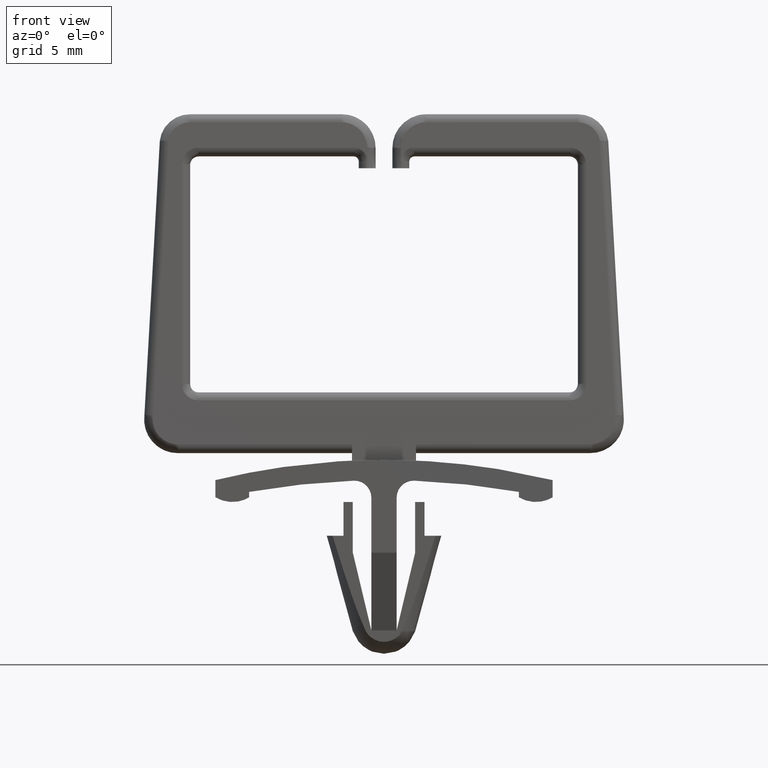
[diagram: clean part render]
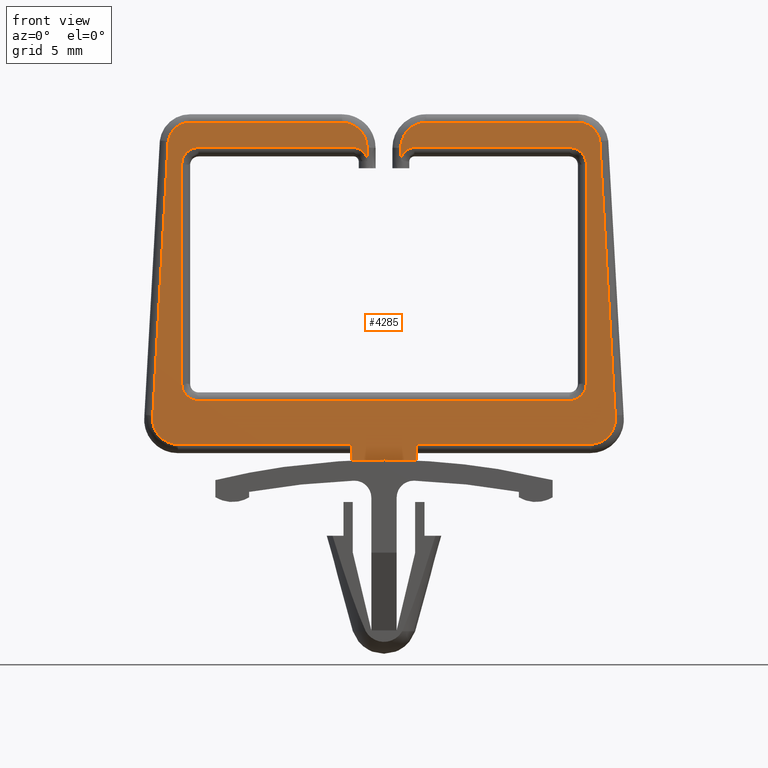
[diagram: same view with one face highlighted and labeled with its STEP entity id]
A machine part, front view. The second image highlights one B-rep face of the part: STEP entity #4285.
In plain terms, the highlighted face is a freeform B-spline surface patch.
Its self-contained STEP definition (entity closure, byte-faithful):
#58=CARTESIAN_POINT('',(1.899999999999890,-2.498031145214460,-4.042725642710270));
#59=VERTEX_POINT('',#58);
#60=CARTESIAN_POINT('',(-1.899999990472700,-2.498031154818015,-4.042725854083999));
#61=VERTEX_POINT('',#60);
#62=CARTESIAN_POINT('',(1.899999999999890,-2.498031145214460,-4.042725642710270));
#63=CARTESIAN_POINT('',(5.750821E-010,-2.494146697265660,-3.957229212745592));
#64=CARTESIAN_POINT('',(-1.899999990472700,-2.498031154818015,-4.042725854083999));
#72=(BOUNDED_CURVE()B_SPLINE_CURVE(2,(#62,#63,#64),.UNSPECIFIED.,.F.,.U.)CURVE()GEOMETRIC_REPRESENTATION_ITEM()QUASI_UNIFORM_CURVE()RATIONAL_B_SPLINE_CURVE((1.0,0.998989116641574,1.0))REPRESENTATION_ITEM(''));
#73=EDGE_CURVE('',#59,#61,#72,.T.);
#2157=CARTESIAN_POINT('',(-1.900000000000000,-2.454168251417960,-3.077306392163555));
#2158=VERTEX_POINT('',#2157);
#2176=CARTESIAN_POINT('',(-12.229322000000019,-2.454168251417960,-3.077306392163550));
#2177=VERTEX_POINT('',#2176);
#2178=CARTESIAN_POINT('',(-12.229322000000019,-2.454168251417960,-3.077306392163550));
#2179=CARTESIAN_POINT('',(-1.900000000000000,-2.454168251417960,-3.077306392163555));
#2180=QUASI_UNIFORM_CURVE('',1,(#2178,#2179),.UNSPECIFIED.,.F.,.U.);
#2181=EDGE_CURVE('',#2177,#2158,#2180,.T.);
#2246=CARTESIAN_POINT('',(-13.715162772383801,-2.376675313031650,-1.371692192454490));
#2247=VERTEX_POINT('',#2246);
#2289=CARTESIAN_POINT('',(-13.715162772383790,-2.376675313031652,-1.371692192454489));
#2290=CARTESIAN_POINT('',(-13.808735155067309,-2.407397220863577,-2.047879253255677));
#2291=CARTESIAN_POINT('',(-13.360343949292700,-2.430782736140768,-2.562592822709612));
#2292=CARTESIAN_POINT('',(-12.911952743518087,-2.454168251417959,-3.077306392163548));
#2293=CARTESIAN_POINT('',(-12.229322000000019,-2.454168251417959,-3.077306392163548));
#2301=(BOUNDED_CURVE()B_SPLINE_CURVE(2,(#2289,#2290,#2291,#2292,#2293),.UNSPECIFIED.,.F.,.U.)B_SPLINE_CURVE_WITH_KNOTS((3,2,3),(0.0,0.500000000000000,1.0),.UNSPECIFIED.)CURVE()GEOMETRIC_REPRESENTATION_ITEM()RATIONAL_B_SPLINE_CURVE((1.0,0.910180647004772,1.0,0.910180647004772,1.0))REPRESENTATION_ITEM(''));
#2302=EDGE_CURVE('',#2247,#2177,#2301,.T.);
#2338=CARTESIAN_POINT('',(-12.802022432150700,-1.637255589427875,14.902884644941620));
#2339=VERTEX_POINT('',#2338);
#2340=CARTESIAN_POINT('',(-12.802022432150700,-1.637255589427875,14.902884644941620));
#2341=CARTESIAN_POINT('',(-13.715162772383801,-2.376675313031650,-1.371692192454490));
#2342=QUASI_UNIFORM_CURVE('',1,(#2340,#2341),.UNSPECIFIED.,.F.,.U.);
#2343=EDGE_CURVE('',#2339,#2247,#2342,.T.);
#2418=CARTESIAN_POINT('',(-11.514571000000000,-1.586378147752710,16.022693607836349));
#2419=VERTEX_POINT('',#2418);
#2449=CARTESIAN_POINT('',(-11.514571000000000,-1.586378147752710,16.022693607836349));
#2450=CARTESIAN_POINT('',(-12.645294548406925,-1.586378147752693,16.022693607836263));
#2451=CARTESIAN_POINT('',(-12.802022432150700,-1.637255589427856,14.902884644941629));
#2459=(BOUNDED_CURVE()B_SPLINE_CURVE(2,(#2449,#2450,#2451),.UNSPECIFIED.,.F.,.U.)CURVE()GEOMETRIC_REPRESENTATION_ITEM()QUASI_UNIFORM_CURVE()RATIONAL_B_SPLINE_CURVE((1.0,0.754522527854886,1.0))REPRESENTATION_ITEM(''));
#2460=EDGE_CURVE('',#2419,#2339,#2459,.T.);
#2479=CARTESIAN_POINT('',(-2.500000000000000,-1.586378147752710,16.022693607836349));
#2480=VERTEX_POINT('',#2479);
#2502=CARTESIAN_POINT('',(-2.500000000000000,-1.586378147752710,16.022693607836349));
#2503=CARTESIAN_POINT('',(-11.514571000000000,-1.586378147752710,16.022693607836349));
#2504=QUASI_UNIFORM_CURVE('',1,(#2502,#2503),.UNSPECIFIED.,.F.,.U.);
#2505=EDGE_CURVE('',#2480,#2419,#2504,.T.);
#2548=CARTESIAN_POINT('',(-1.0,-1.654529203014380,14.522693607836359));
#2549=VERTEX_POINT('',#2548);
#2581=CARTESIAN_POINT('',(-1.0,-1.654529203014360,14.522693607836359));
#2582=CARTESIAN_POINT('',(-1.000000000000000,-1.586378156126964,16.022693423519190));
#2583=CARTESIAN_POINT('',(-2.500000000000000,-1.586378147752710,16.022693607836349));
#2591=(BOUNDED_CURVE()B_SPLINE_CURVE(2,(#2581,#2582,#2583),.UNSPECIFIED.,.F.,.U.)CURVE()GEOMETRIC_REPRESENTATION_ITEM()QUASI_UNIFORM_CURVE()RATIONAL_B_SPLINE_CURVE((1.0,0.707106824630523,1.0))REPRESENTATION_ITEM(''));
#2592=EDGE_CURVE('',#2549,#2480,#2591,.T.);
#2649=CARTESIAN_POINT('',(-1.0,-1.690876432487270,13.722693607836259));
#2650=VERTEX_POINT('',#2649);
#2651=CARTESIAN_POINT('',(-1.0,-1.690876432487270,13.722693607836259));
#2652=CARTESIAN_POINT('',(-1.0,-1.654529203014380,14.522693607836359));
#2653=QUASI_UNIFORM_CURVE('',1,(#2651,#2652),.UNSPECIFIED.,.F.,.U.);
#2654=EDGE_CURVE('',#2650,#2549,#2653,.T.);
#2732=CARTESIAN_POINT('',(-1.800000000000000,-1.654529203014380,14.522693607836359));
#2733=VERTEX_POINT('',#2732);
#2765=CARTESIAN_POINT('',(-1.800000000000000,-1.654529203014380,14.522693607836359));
#2766=CARTESIAN_POINT('',(-1.000000000000000,-1.654529203014455,14.522693607836256));
#2767=CARTESIAN_POINT('',(-1.0,-1.690876432487270,13.722693607836259));
#2775=(BOUNDED_CURVE()B_SPLINE_CURVE(2,(#2765,#2766,#2767),.UNSPECIFIED.,.F.,.U.)CURVE()GEOMETRIC_REPRESENTATION_ITEM()QUASI_UNIFORM_CURVE()RATIONAL_B_SPLINE_CURVE((1.0,0.707106781186544,1.0))REPRESENTATION_ITEM(''));
#2776=EDGE_CURVE('',#2733,#2650,#2775,.T.);
#2795=CARTESIAN_POINT('',(-11.0,-1.654529203014380,14.522693607836359));
#2796=VERTEX_POINT('',#2795);
#2820=CARTESIAN_POINT('',(-11.0,-1.654529203014380,14.522693607836359));
#2821=CARTESIAN_POINT('',(-1.800000000000000,-1.654529203014380,14.522693607836359));
#2822=QUASI_UNIFORM_CURVE('',1,(#2820,#2821),.UNSPECIFIED.,.F.,.U.);
#2823=EDGE_CURVE('',#2796,#2733,#2822,.T.);
#2886=CARTESIAN_POINT('',(-12.0,-1.699963239855490,13.522693607836340));
#2887=VERTEX_POINT('',#2886);
#2919=CARTESIAN_POINT('',(-12.0,-1.699963239855455,13.522693607836359));
#2920=CARTESIAN_POINT('',(-11.999999999999998,-1.681143845116787,13.936907180900132));
#2921=CARTESIAN_POINT('',(-11.707106768281760,-1.667836523722108,14.229800401927690));
#2922=CARTESIAN_POINT('',(-11.414213536563533,-1.654529202327430,14.522693622955259));
#2923=CARTESIAN_POINT('',(-11.0,-1.654529203014380,14.522693607836359));
#2931=(BOUNDED_CURVE()B_SPLINE_CURVE(2,(#2919,#2920,#2921,#2922,#2923),.UNSPECIFIED.,.F.,.U.)B_SPLINE_CURVE_WITH_KNOTS((3,2,3),(0.0,0.500000000000000,1.0),.UNSPECIFIED.)CURVE()GEOMETRIC_REPRESENTATION_ITEM()RATIONAL_B_SPLINE_CURVE((1.0,0.923879529019277,1.0,0.923879529019277,1.0))REPRESENTATION_ITEM(''));
#2932=EDGE_CURVE('',#2887,#2796,#2931,.T.);
#2951=CARTESIAN_POINT('',(-12.0,-2.290605718789955,0.522693607836345));
#2952=VERTEX_POINT('',#2951);
#2976=CARTESIAN_POINT('',(-12.0,-2.290605718789955,0.522693607836345));
#2977=CARTESIAN_POINT('',(-12.0,-1.699963239855490,13.522693607836340));
#2978=QUASI_UNIFORM_CURVE('',1,(#2976,#2977),.UNSPECIFIED.,.F.,.U.);
#2979=EDGE_CURVE('',#2952,#2887,#2978,.T.);
#3042=CARTESIAN_POINT('',(-11.0,-2.336039755631070,-0.477306392163655));
#3043=VERTEX_POINT('',#3042);
#3073=CARTESIAN_POINT('',(-11.0,-2.336039755631048,-0.477306392163657));
#3074=CARTESIAN_POINT('',(-11.414213562373092,-2.336039755631048,-0.477306392163657));
#3075=CARTESIAN_POINT('',(-11.707106781186550,-2.322732434336965,-0.184413173350204));
#3076=CARTESIAN_POINT('',(-12.0,-2.309425113042883,0.108480045463248));
#3077=CARTESIAN_POINT('',(-12.0,-2.290605718789935,0.522693607836344));
#3085=(BOUNDED_CURVE()B_SPLINE_CURVE(2,(#3073,#3074,#3075,#3076,#3077),.UNSPECIFIED.,.F.,.U.)B_SPLINE_CURVE_WITH_KNOTS((3,2,3),(0.0,0.500000000000000,1.0),.UNSPECIFIED.)CURVE()GEOMETRIC_REPRESENTATION_ITEM()RATIONAL_B_SPLINE_CURVE((1.0,0.923879532511288,1.0,0.923879532511288,1.0))REPRESENTATION_ITEM(''));
#3086=EDGE_CURVE('',#3043,#2952,#3085,.T.);
#3105=CARTESIAN_POINT('',(11.0,-2.336039755631070,-0.477306392163657));
#3106=VERTEX_POINT('',#3105);
#3128=CARTESIAN_POINT('',(11.0,-2.336039755631070,-0.477306392163657));
#3129=CARTESIAN_POINT('',(-11.0,-2.336039755631070,-0.477306392163655));
#3130=QUASI_UNIFORM_CURVE('',1,(#3128,#3129),.UNSPECIFIED.,.F.,.U.);
#3131=EDGE_CURVE('',#3106,#3043,#3130,.T.);
#3194=CARTESIAN_POINT('',(12.0,-2.290605718789955,0.522693607836344));
#3195=VERTEX_POINT('',#3194);
#3227=CARTESIAN_POINT('',(12.0,-2.290605718789935,0.522693607836343));
#3228=CARTESIAN_POINT('',(12.0,-2.336039755631048,-0.477306392163657));
#3229=CARTESIAN_POINT('',(11.0,-2.336039755631048,-0.477306392163657));
#3237=(BOUNDED_CURVE()B_SPLINE_CURVE(2,(#3227,#3228,#3229),.UNSPECIFIED.,.F.,.U.)CURVE()GEOMETRIC_REPRESENTATION_ITEM()QUASI_UNIFORM_CURVE()RATIONAL_B_SPLINE_CURVE((1.0,0.707106781186547,1.0))REPRESENTATION_ITEM(''));
#3238=EDGE_CURVE('',#3195,#3106,#3237,.T.);
#3257=CARTESIAN_POINT('',(12.0,-1.699963239855490,13.522693607836340));
#3258=VERTEX_POINT('',#3257);
#3282=CARTESIAN_POINT('',(12.0,-1.699963239855490,13.522693607836340));
#3283=CARTESIAN_POINT('',(12.0,-2.290605718789955,0.522693607836344));
#3284=QUASI_UNIFORM_CURVE('',1,(#3282,#3283),.UNSPECIFIED.,.F.,.U.);
#3285=EDGE_CURVE('',#3258,#3195,#3284,.T.);
#3348=CARTESIAN_POINT('',(11.0,-1.654529203014380,14.522693607836359));
#3349=VERTEX_POINT('',#3348);
#3383=CARTESIAN_POINT('',(11.0,-1.654529203014380,14.522693607836359));
#3384=CARTESIAN_POINT('',(12.0,-1.654529204672696,14.522693571336115));
#3385=CARTESIAN_POINT('',(12.0,-1.699963239855490,13.522693607836340));
#3393=(BOUNDED_CURVE()B_SPLINE_CURVE(2,(#3383,#3384,#3385),.UNSPECIFIED.,.F.,.U.)CURVE()GEOMETRIC_REPRESENTATION_ITEM()QUASI_UNIFORM_CURVE()RATIONAL_B_SPLINE_CURVE((1.0,0.707106794091350,1.0))REPRESENTATION_ITEM(''));
#3394=EDGE_CURVE('',#3349,#3258,#3393,.T.);
#3413=CARTESIAN_POINT('',(1.799999999999800,-1.654529203014380,14.522693607836260));
#3414=VERTEX_POINT('',#3413);
#3438=CARTESIAN_POINT('',(1.799999999999800,-1.654529203014380,14.522693607836260));
#3439=CARTESIAN_POINT('',(11.0,-1.654529203014380,14.522693607836359));
#3440=QUASI_UNIFORM_CURVE('',1,(#3438,#3439),.UNSPECIFIED.,.F.,.U.);
#3441=EDGE_CURVE('',#3414,#3349,#3440,.T.);
#3504=CARTESIAN_POINT('',(0.999999999999890,-1.690876432487270,13.722693607836259));
#3505=VERTEX_POINT('',#3504);
#3537=CARTESIAN_POINT('',(0.999999999999890,-1.690876432487270,13.722693607836259));
#3538=CARTESIAN_POINT('',(1.000000379602221,-1.654529203014456,14.522693607836256));
#3539=CARTESIAN_POINT('',(1.799999999999800,-1.654529203014380,14.522693607836260));
#3547=(BOUNDED_CURVE()B_SPLINE_CURVE(2,(#3537,#3538,#3539),.UNSPECIFIED.,.F.,.U.)CURVE()GEOMETRIC_REPRESENTATION_ITEM()QUASI_UNIFORM_CURVE()RATIONAL_B_SPLINE_CURVE((1.0,0.707106948948721,1.0))REPRESENTATION_ITEM(''));
#3548=EDGE_CURVE('',#3505,#3414,#3547,.T.);
#3603=CARTESIAN_POINT('',(0.999999999999901,-1.654529203014380,14.522693607836359));
#3604=VERTEX_POINT('',#3603);
#3605=CARTESIAN_POINT('',(0.999999999999901,-1.654529203014380,14.522693607836359));
#3606=CARTESIAN_POINT('',(0.999999999999890,-1.690876432487270,13.722693607836259));
#3607=QUASI_UNIFORM_CURVE('',1,(#3605,#3606),.UNSPECIFIED.,.F.,.U.);
#3608=EDGE_CURVE('',#3604,#3505,#3607,.T.);
#3666=CARTESIAN_POINT('',(2.499999999999901,-1.586378147752710,16.022693607836349));
#3667=VERTEX_POINT('',#3666);
#3699=CARTESIAN_POINT('',(2.499999999999901,-1.586378147752710,16.022693607836349));
#3700=CARTESIAN_POINT('',(1.878679786772192,-1.586378144283954,16.022693684183036));
#3701=CARTESIAN_POINT('',(1.439339893386047,-1.606339126733062,15.583353844782151));
#3702=CARTESIAN_POINT('',(0.999999999999900,-1.626300109182170,15.144014005381260));
#3703=CARTESIAN_POINT('',(0.999999999999900,-1.654529203014360,14.522693607836359));
#3711=(BOUNDED_CURVE()B_SPLINE_CURVE(2,(#3699,#3700,#3701,#3702,#3703),.UNSPECIFIED.,.F.,.U.)B_SPLINE_CURVE_WITH_KNOTS((3,2,3),(0.0,0.500000000000000,1.0),.UNSPECIFIED.)CURVE()GEOMETRIC_REPRESENTATION_ITEM()RATIONAL_B_SPLINE_CURVE((1.0,0.923879520755431,1.0,0.923879520755431,1.0))REPRESENTATION_ITEM(''));
#3712=EDGE_CURVE('',#3667,#3604,#3711,.T.);
#3731=CARTESIAN_POINT('',(11.514571000000000,-1.586378147752715,16.022693607836249));
#3732=VERTEX_POINT('',#3731);
#3754=CARTESIAN_POINT('',(11.514571000000000,-1.586378147752715,16.022693607836249));
#3755=CARTESIAN_POINT('',(2.499999999999901,-1.586378147752710,16.022693607836349));
#3756=QUASI_UNIFORM_CURVE('',1,(#3754,#3755),.UNSPECIFIED.,.F.,.U.);
#3757=EDGE_CURVE('',#3732,#3667,#3756,.T.);
#3800=CARTESIAN_POINT('',(12.802020763044760,-1.637255047616345,14.902896570175820));
#3801=VERTEX_POINT('',#3800);
#3841=CARTESIAN_POINT('',(12.802020763044780,-1.637255047616327,14.902896570175820));
#3842=CARTESIAN_POINT('',(12.645283995216214,-1.586378155015008,16.022693447993220));
#3843=CARTESIAN_POINT('',(11.514571000000000,-1.586378147752715,16.022693607836249));
#3851=(BOUNDED_CURVE()B_SPLINE_CURVE(2,(#3841,#3842,#3843),.UNSPECIFIED.,.F.,.U.)CURVE()GEOMETRIC_REPRESENTATION_ITEM()QUASI_UNIFORM_CURVE()RATIONAL_B_SPLINE_CURVE((1.0,0.754525613660070,1.0))REPRESENTATION_ITEM(''));
#3852=EDGE_CURVE('',#3801,#3732,#3851,.T.);
#3888=CARTESIAN_POINT('',(13.715161772383800,-2.376675313031660,-1.371692192454676));
#3889=VERTEX_POINT('',#3888);
#3890=CARTESIAN_POINT('',(13.715161772383800,-2.376675313031660,-1.371692192454676));
#3891=CARTESIAN_POINT('',(12.802020763044760,-1.637255047616345,14.902896570175820));
#3892=QUASI_UNIFORM_CURVE('',1,(#3890,#3891),.UNSPECIFIED.,.F.,.U.);
#3893=EDGE_CURVE('',#3889,#3801,#3892,.T.);
#3986=CARTESIAN_POINT('',(12.229321000000001,-2.454168251417960,-3.077306392163555));
#3987=VERTEX_POINT('',#3986);
#3988=CARTESIAN_POINT('',(12.229321000000001,-2.454168251417959,-3.077306392163548));
#3989=CARTESIAN_POINT('',(12.911951743517999,-2.454168251417960,-3.077306392163548));
#3990=CARTESIAN_POINT('',(13.360342949292599,-2.430782736140771,-2.562592822709691));
#3991=CARTESIAN_POINT('',(13.808734155067208,-2.407397220863583,-2.047879253255834));
#3992=CARTESIAN_POINT('',(13.715161772383800,-2.376675313031662,-1.371692192454694));
#4000=(BOUNDED_CURVE()B_SPLINE_CURVE(2,(#3988,#3989,#3990,#3991,#3992),.UNSPECIFIED.,.F.,.U.)B_SPLINE_CURVE_WITH_KNOTS((3,2,3),(0.0,0.500000000000000,1.0),.UNSPECIFIED.)CURVE()GEOMETRIC_REPRESENTATION_ITEM()RATIONAL_B_SPLINE_CURVE((1.0,0.910180647004785,1.0,0.910180647004785,1.0))REPRESENTATION_ITEM(''));
#4001=EDGE_CURVE('',#3987,#3889,#4000,.T.);
#4037=CARTESIAN_POINT('',(1.899999999999890,-2.454168251417960,-3.077306392163555));
#4038=VERTEX_POINT('',#4037);
#4060=CARTESIAN_POINT('',(1.899999999999890,-2.454168251417960,-3.077306392163555));
#4061=CARTESIAN_POINT('',(12.229321000000001,-2.454168251417960,-3.077306392163555));
#4062=QUASI_UNIFORM_CURVE('',1,(#4060,#4061),.UNSPECIFIED.,.F.,.U.);
#4063=EDGE_CURVE('',#4038,#3987,#4062,.T.);
#4242=CARTESIAN_POINT('',(-15.100419048805369,-1.540841081816760,17.024961271068602));
#4243=CARTESIAN_POINT('',(-15.100419048805369,-2.543568245206369,-5.044994055512736));
#4244=CARTESIAN_POINT('',(15.100418886266080,-1.540841081816760,17.024961271068602));
#4245=CARTESIAN_POINT('',(15.100418886266080,-2.543568245206369,-5.044994055512736));
#4246=B_SPLINE_SURFACE_WITH_KNOTS('',1,1,((#4242,#4244),(#4243,#4245)),.UNSPECIFIED.,.F.,.F.,.U.,(2,2),(2,2),(0.0,22.092722554757600),(0.0,30.200837935071441),.UNSPECIFIED.);
#4247=ORIENTED_EDGE('',*,*,#73,.F.);
#4248=CARTESIAN_POINT('',(1.899999999999890,-2.454168251417960,-3.077306392163555));
#4249=CARTESIAN_POINT('',(1.899999999999890,-2.498031145214460,-4.042725642710270));
#4250=QUASI_UNIFORM_CURVE('',1,(#4248,#4249),.UNSPECIFIED.,.F.,.U.);
#4251=EDGE_CURVE('',#4038,#59,#4250,.T.);
#4252=ORIENTED_EDGE('',*,*,#4251,.F.);
#4253=ORIENTED_EDGE('',*,*,#4063,.T.);
#4254=ORIENTED_EDGE('',*,*,#4001,.T.);
#4255=ORIENTED_EDGE('',*,*,#3893,.T.);
#4256=ORIENTED_EDGE('',*,*,#3852,.T.);
#4257=ORIENTED_EDGE('',*,*,#3757,.T.);
#4258=ORIENTED_EDGE('',*,*,#3712,.T.);
#4259=ORIENTED_EDGE('',*,*,#3608,.T.);
#4260=ORIENTED_EDGE('',*,*,#3548,.T.);
#4261=ORIENTED_EDGE('',*,*,#3441,.T.);
#4262=ORIENTED_EDGE('',*,*,#3394,.T.);
#4263=ORIENTED_EDGE('',*,*,#3285,.T.);
#4264=ORIENTED_EDGE('',*,*,#3238,.T.);
#4265=ORIENTED_EDGE('',*,*,#3131,.T.);
#4266=ORIENTED_EDGE('',*,*,#3086,.T.);
#4267=ORIENTED_EDGE('',*,*,#2979,.T.);
#4268=ORIENTED_EDGE('',*,*,#2932,.T.);
#4269=ORIENTED_EDGE('',*,*,#2823,.T.);
#4270=ORIENTED_EDGE('',*,*,#2776,.T.);
#4271=ORIENTED_EDGE('',*,*,#2654,.T.);
#4272=ORIENTED_EDGE('',*,*,#2592,.T.);
#4273=ORIENTED_EDGE('',*,*,#2505,.T.);
#4274=ORIENTED_EDGE('',*,*,#2460,.T.);
#4275=ORIENTED_EDGE('',*,*,#2343,.T.);
#4276=ORIENTED_EDGE('',*,*,#2302,.T.);
#4277=ORIENTED_EDGE('',*,*,#2181,.T.);
#4278=CARTESIAN_POINT('',(-1.899999990472700,-2.498031154818015,-4.042725854083999));
#4279=CARTESIAN_POINT('',(-1.900000000000000,-2.454168251417960,-3.077306392163555));
#4280=QUASI_UNIFORM_CURVE('',1,(#4278,#4279),.UNSPECIFIED.,.F.,.U.);
#4281=EDGE_CURVE('',#61,#2158,#4280,.T.);
#4282=ORIENTED_EDGE('',*,*,#4281,.F.);
#4283=EDGE_LOOP('',(#4247,#4252,#4253,#4254,#4255,#4256,#4257,#4258,#4259,#4260,#4261,#4262,#4263,#4264,#4265,#4266,#4267,#4268,#4269,#4270,#4271,#4272,#4273,#4274,#4275,#4276,#4277,#4282));
#4284=FACE_OUTER_BOUND('',#4283,.T.);
#4285=ADVANCED_FACE('',(#4284),#4246,.T.);